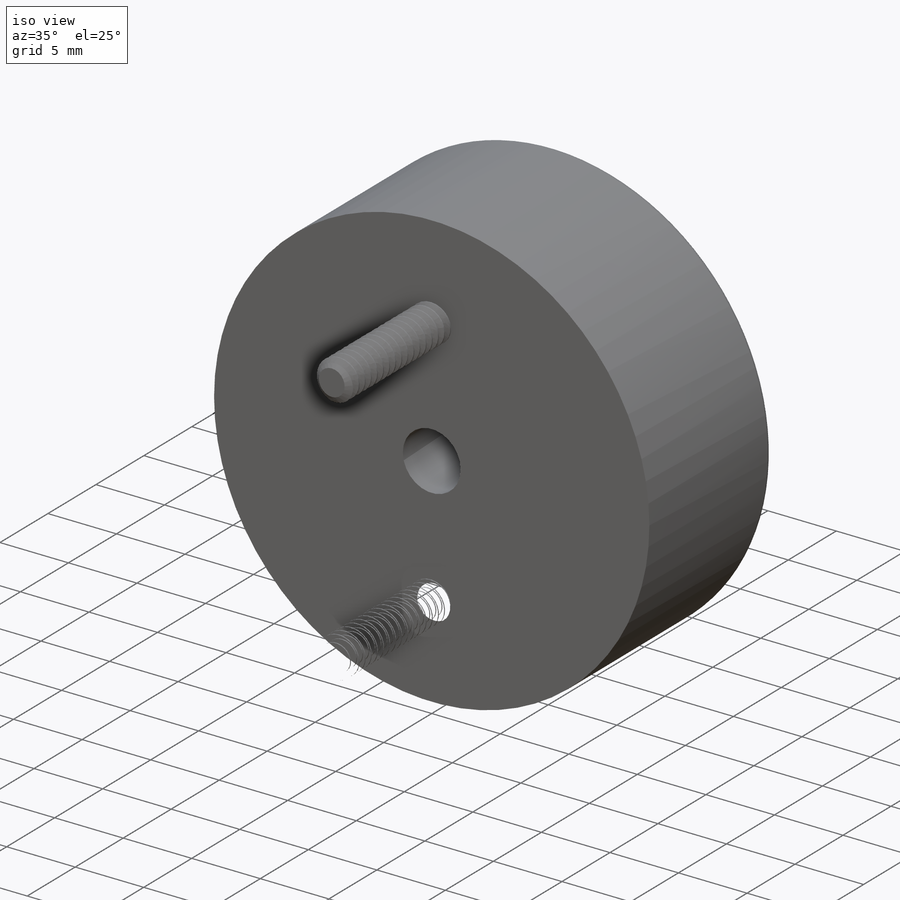
[diagram: iso view]
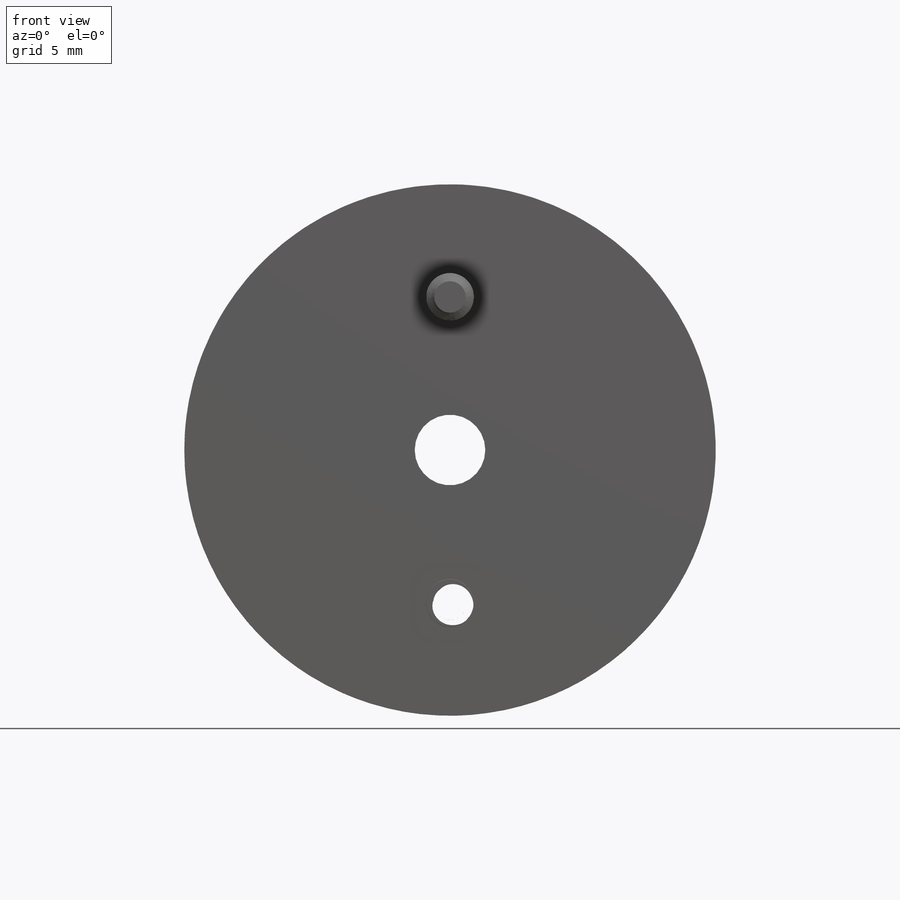
[diagram: front view]
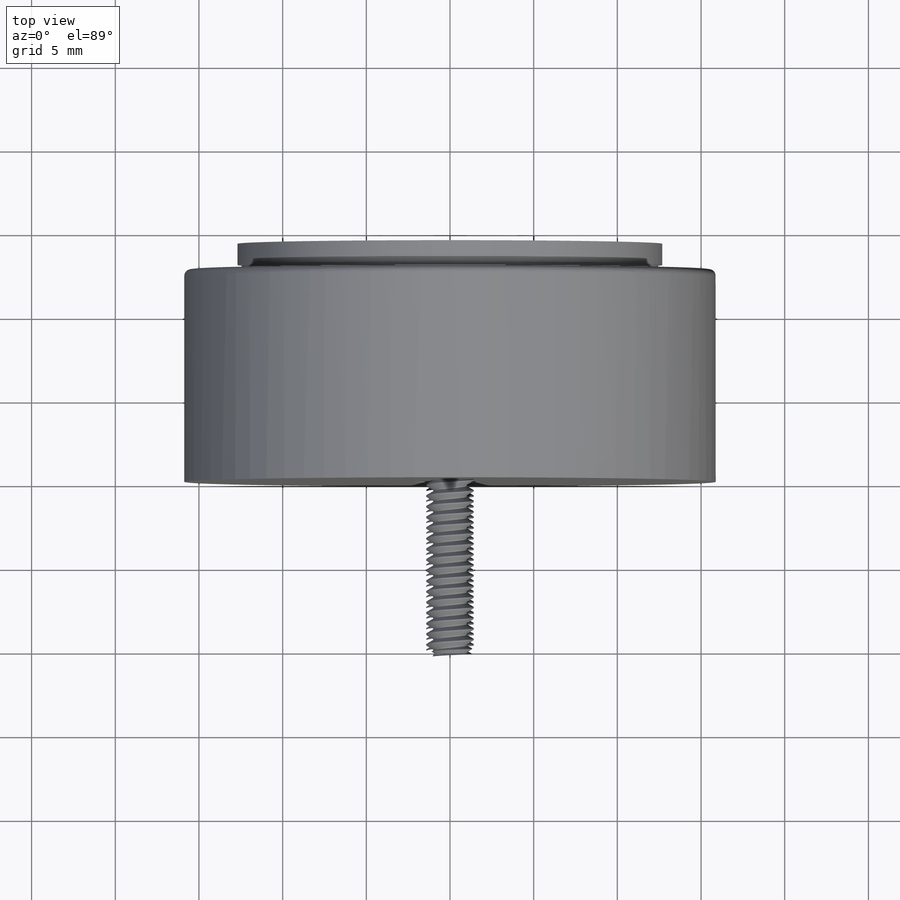
[diagram: top view]
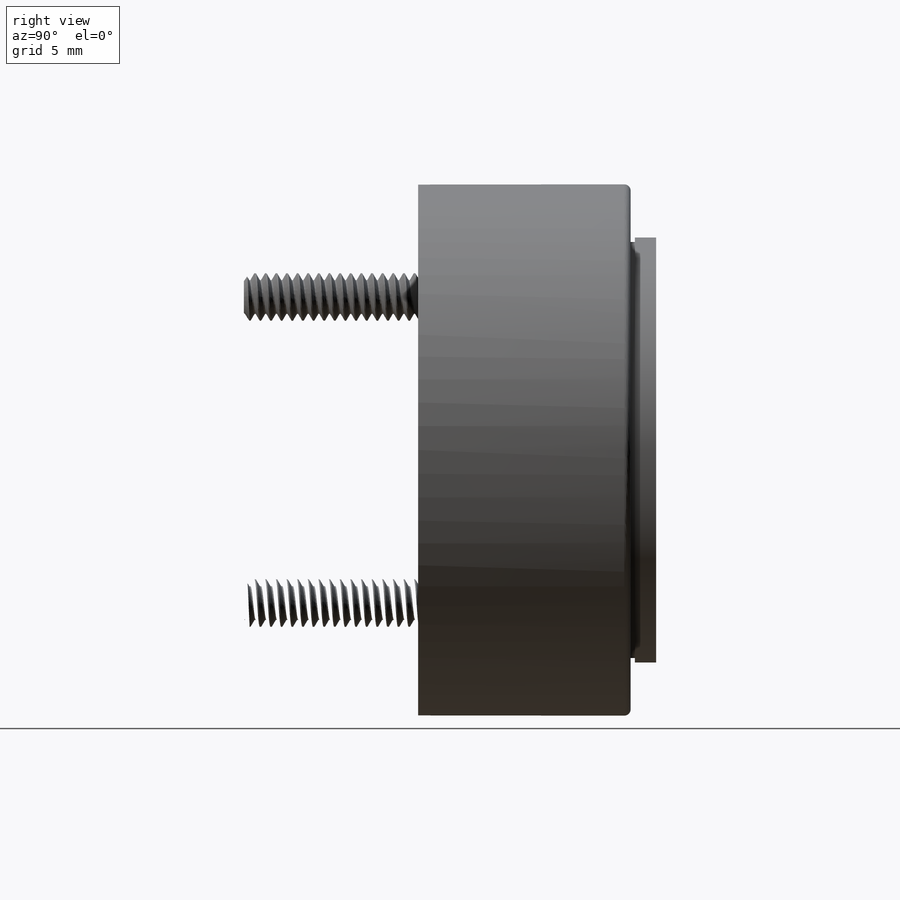
[diagram: right view]
SOLIDWORKS PART (.sldprt)
format: sldprt  version: not decoded by parser v0  size: 1,505,280 bytes
history: native  units: mm
features: sketch x11, revolve x2, helix x2, sweep x2, cut_extrude x2, material x1, extrude x1, pattern_linear x1, boolean_combine x1, move_body x1 (+15 scaffold rows collapsed)
feature tree (39):
  scaffold x15  (default folders/planes/origin — collapsed)
  material  "Material <not specified>"
  sketch  "Sketch0"  dims[Lg.=12.7mm Dia.=31.75mm Rod Dia.=3.9624mm A=11.938mm Stud C-C=18.288mm Stroke=5.08mm B=13.462mm Stud Lg.=10.414mm Stud OD=2.8448mm OAL=38.1mm D1=1.524mm Thread OD=4.1656mm D2=25.4mm]
  sketch  "Sketch1"  dims[c1.D1=0.381mm c1.D4=0.3175mm c1.D2=0.127mm c1.D3=5.4864mm c2.D4=0.5334mm c2.D5=10.9982mm c2.D6=0.381mm c2.D7=10.3378mm c3.D6=~0.727899mm c3.D4=0.5334mm c4.D6=0.381mm c4.D2=0.254mm c4.D3=0.254mm c4.D4=0.127mm c4.D5=22.352mm]
  revolve  "Revolve1"  Angle=360deg
  sketch  "Sketch2"  dims[D1=0.254mm]
  revolve  "Revolve2"  Angle=360deg
  sketch  "Sketch3"
  helix  "Helix/Spiral1"  Pitch=19.33575mm
  sketch  "Sketch4"  dims[D1=~0.79375mm D2=~0.099219mm]
  sweep  "Cut-Sweep1"
  sketch  "Sketch5"
  cut_extrude  "Cut-Extrude1"  Depth=3.175mm
  sketch  "Sketch6"
  extrude  "Boss-Extrude1"  [1 undecoded]
  sketch  "Sketch7"  dims[D1=0.0mm]
  helix  "Helix/Spiral2"  Pitch=11.049mm
  sketch  "Sketch8"  dims[D1=0.635mm D2=~0.079375mm]
  sweep  "Cut-Sweep2"
  sketch  "Sketch9"
  cut_extrude  "Cut-Extrude2"  [1 undecoded]
  pattern_linear  "LPattern1"  Count1=2 Count2=1 Spacing1=18.288mm Spacing2=3.175mm
  boolean_combine  "Combine1"
  sketch  "SketchX"
  move_body  "Body-Move/Copy1"
decode coverage: 12 of 23 modeling features carry decoded parameters
note: ~ marks probable driven/reference dimensions
note: 2 parameter values undecoded
note: suppression state not decoded; provenance and decode notes live in map.json
